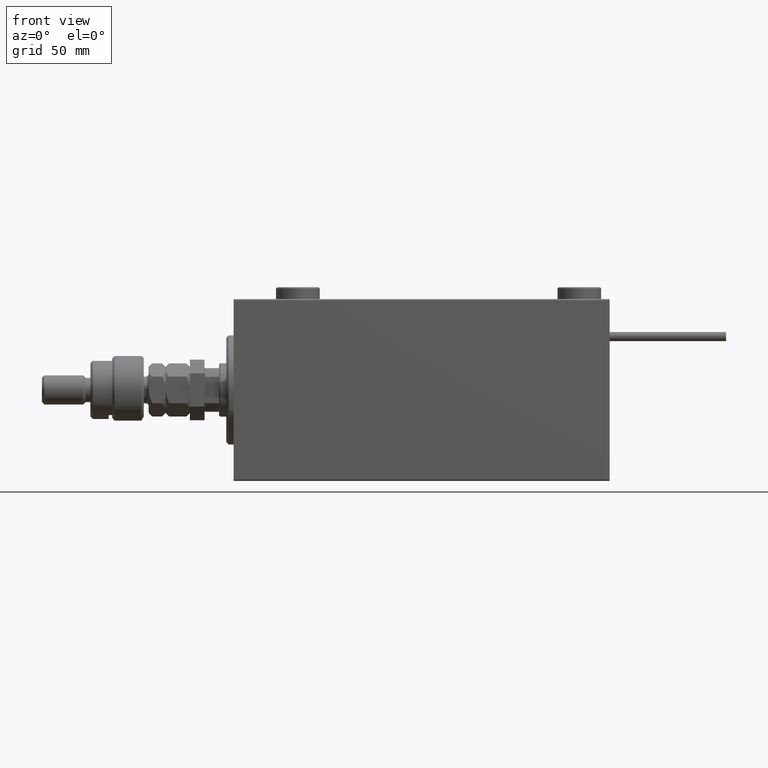
[diagram: clean part render]
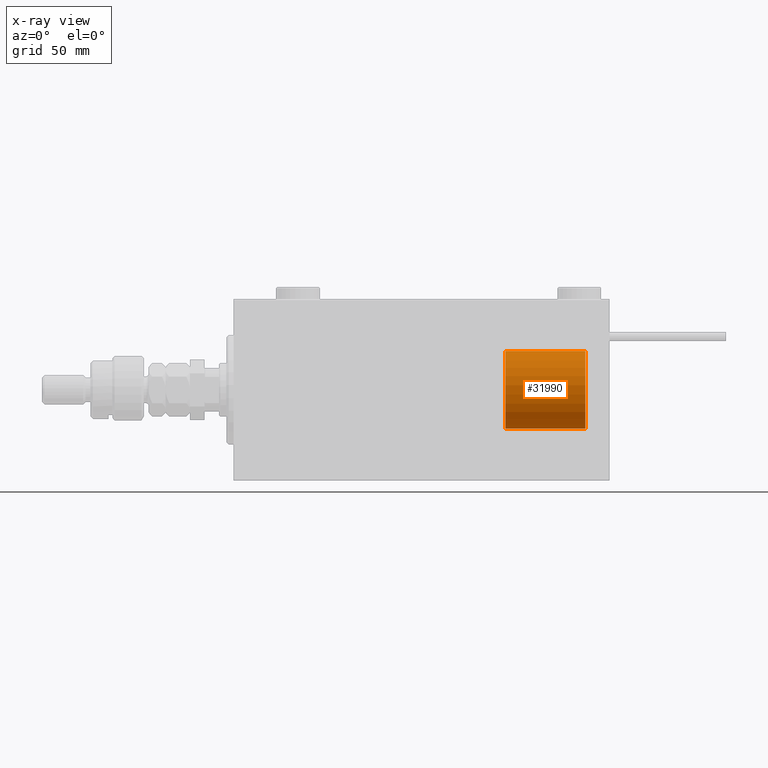
[diagram: x-ray — body ghosted, one internal face saturated and labeled with its STEP entity id]
A machine part, front view, then the same camera in x-ray: the body is ghosted and one INTERNAL B-rep face — a face not visible from any outside direction — is saturated and labeled: STEP entity #31990.
In plain terms, the highlighted cylindrical surface (partial cylindrical patch) has radius 16 mm, axis along (1, -0, -0).
Its self-contained STEP definition (entity closure, byte-faithful):
#2395 = CARTESIAN_POINT ( 'NONE',  ( 0.000000000000000000, 0.000000000000000000, 33.00000000000000000 ) ) ;
#2989 = DIRECTION ( 'NONE',  ( -1.000000000000000000, 0.000000000000000000, 0.000000000000000000 ) ) ;
#5813 = ORIENTED_EDGE ( 'NONE', *, *, #46812, .F. ) ;
#8216 = VERTEX_POINT ( 'NONE', #32733 ) ;
#8931 = DIRECTION ( 'NONE',  ( -0.000000000000000000, -0.000000000000000000, -1.000000000000000000 ) ) ;
#10353 = EDGE_CURVE ( 'NONE', #12279, #22590, #10455, .T. ) ;
#10455 = LINE ( 'NONE', #27275, #51820 ) ;
#11627 = CARTESIAN_POINT ( 'NONE',  ( 0.000000000000000000, 0.000000000000000000, 0.000000000000000000 ) ) ;
#11824 = ORIENTED_EDGE ( 'NONE', *, *, #38588, .T. ) ;
#12279 = VERTEX_POINT ( 'NONE', #27241 ) ;
#14248 = ORIENTED_EDGE ( 'NONE', *, *, #16378, .T. ) ;
#15747 = DIRECTION ( 'NONE',  ( 1.000000000000000000, 0.000000000000000000, 0.000000000000000000 ) ) ;
#16378 = EDGE_CURVE ( 'NONE', #47362, #22590, #16757, .T. ) ;
#16757 = CIRCLE ( 'NONE', #25605, 16.00000000000000000 ) ;
#16919 = LINE ( 'NONE', #50741, #24012 ) ;
#18356 = CARTESIAN_POINT ( 'NONE',  ( 16.00000000000000000, 1.959434878635765131E-15, 0.000000000000000000 ) ) ;
#22588 = CIRCLE ( 'NONE', #53286, 16.00000000000000000 ) ;
#22590 = VERTEX_POINT ( 'NONE', #18356 ) ;
#23915 = CARTESIAN_POINT ( 'NONE',  ( 0.000000000000000000, 0.000000000000000000, 33.00000000000000000 ) ) ;
#24012 = VECTOR ( 'NONE', #8931, 1000.000000000000000 ) ;
#24447 = CYLINDRICAL_SURFACE ( 'NONE', #43182, 16.00000000000000000 ) ;
#25605 = AXIS2_PLACEMENT_3D ( 'NONE', #11627, #32566, #15747 ) ;
#27241 = CARTESIAN_POINT ( 'NONE',  ( 16.00000000000000000, 1.959434878635765131E-15, 33.00000000000000000 ) ) ;
#27275 = CARTESIAN_POINT ( 'NONE',  ( 16.00000000000000000, 1.959434878635765131E-15, 33.00000000000000000 ) ) ;
#27501 = FACE_OUTER_BOUND ( 'NONE', #53738, .T. ) ;
#31402 = DIRECTION ( 'NONE',  ( -0.000000000000000000, -0.000000000000000000, -1.000000000000000000 ) ) ;
#31990 = ADVANCED_FACE ( 'NONE', ( #27501 ), #24447, .T. ) ;
#32379 = DIRECTION ( 'NONE',  ( 0.000000000000000000, 0.000000000000000000, 1.000000000000000000 ) ) ;
#32566 = DIRECTION ( 'NONE',  ( 0.000000000000000000, 0.000000000000000000, 1.000000000000000000 ) ) ;
#32647 = DIRECTION ( 'NONE',  ( 1.000000000000000000, 0.000000000000000000, 0.000000000000000000 ) ) ;
#32733 = CARTESIAN_POINT ( 'NONE',  ( -16.00000000000000000, 0.000000000000000000, 33.00000000000000000 ) ) ;
#38575 = ORIENTED_EDGE ( 'NONE', *, *, #10353, .F. ) ;
#38588 = EDGE_CURVE ( 'NONE', #8216, #47362, #16919, .T. ) ;
#43182 = AXIS2_PLACEMENT_3D ( 'NONE', #23915, #53025, #2989 ) ;
#46812 = EDGE_CURVE ( 'NONE', #8216, #12279, #22588, .T. ) ;
#47362 = VERTEX_POINT ( 'NONE', #48454 ) ;
#48454 = CARTESIAN_POINT ( 'NONE',  ( -16.00000000000000000, 0.000000000000000000, 0.000000000000000000 ) ) ;
#50741 = CARTESIAN_POINT ( 'NONE',  ( -16.00000000000000000, 0.000000000000000000, 33.00000000000000000 ) ) ;
#51820 = VECTOR ( 'NONE', #31402, 1000.000000000000000 ) ;
#53025 = DIRECTION ( 'NONE',  ( -0.000000000000000000, -0.000000000000000000, -1.000000000000000000 ) ) ;
#53286 = AXIS2_PLACEMENT_3D ( 'NONE', #2395, #32379, #32647 ) ;
#53738 = EDGE_LOOP ( 'NONE', ( #38575, #5813, #11824, #14248 ) ) ;